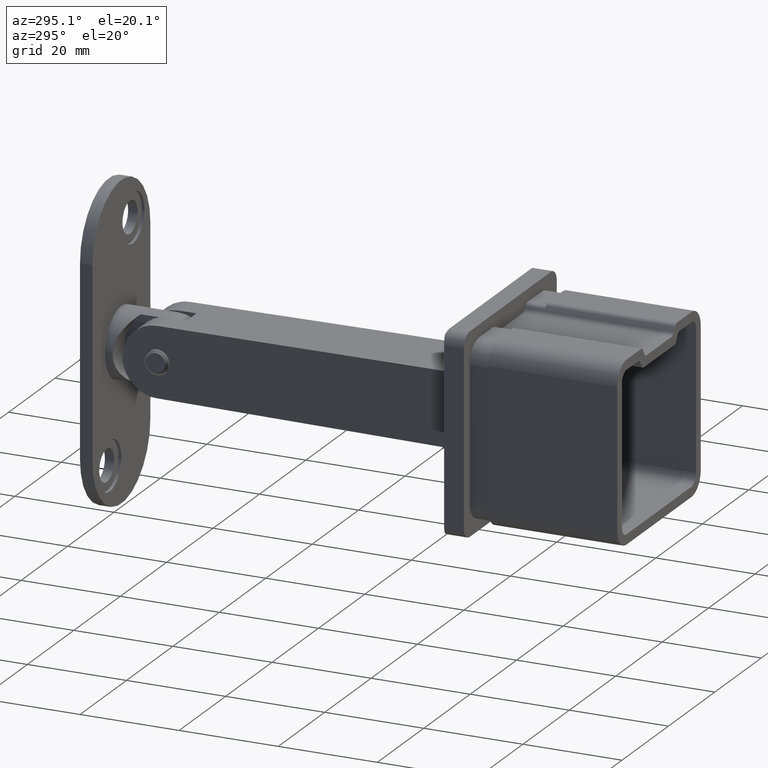
[diagram: clean part render]
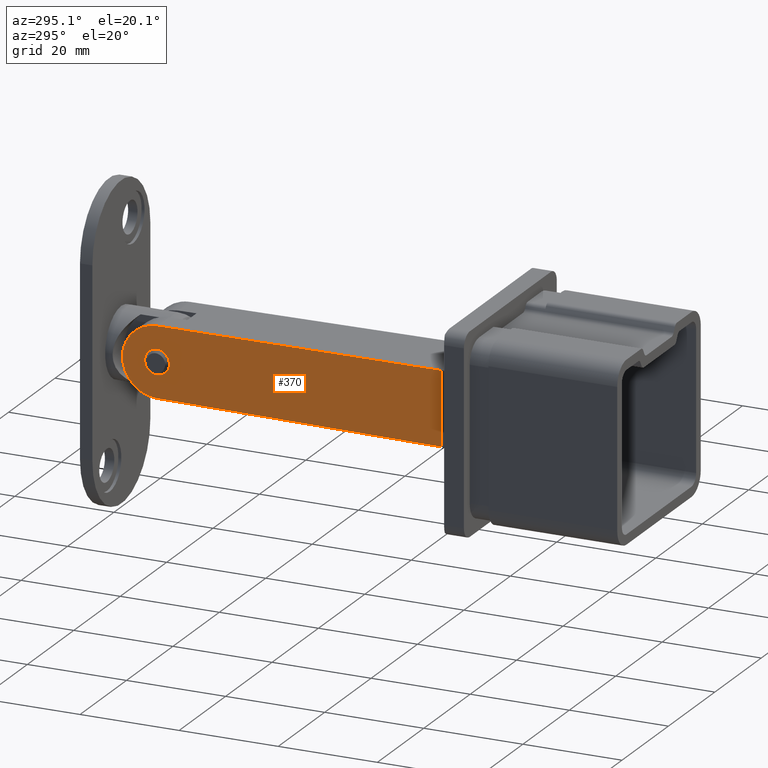
[diagram: same view with one face highlighted and labeled with its STEP entity id]
A machine part, auxiliary view. The second image highlights one B-rep face of the part: STEP entity #370.
In plain terms, the highlighted planar face has unit normal (-1, 0.0066, 0).
Its self-contained STEP definition (entity closure, byte-faithful):
#168 = CARTESIAN_POINT ( 'NONE',  ( -7.021773276781996920, 72.10518720636179069, 7.021773276781996920 ) ) ;
#370 = ADVANCED_FACE ( 'NONE', ( #2231, #6426 ), #9241, .T. ) ;
#959 = DIRECTION ( 'NONE',  ( -0.006632056678232189917, -0.9999560148568702456, 0.006632056678232189917 ) ) ;
#1050 = CARTESIAN_POINT ( 'NONE',  ( -7.002573869773049964, 75.00000000000000000, -0.0001702595050752722661 ) ) ;
#1051 = VERTEX_POINT ( 'NONE', #4248 ) ;
#1105 = EDGE_LOOP ( 'NONE', ( #8590 ) ) ;
#1106 = EDGE_LOOP ( 'NONE', ( #1746, #8183, #1493, #10487, #15344, #11169 ) ) ;
#1314 = VECTOR ( 'NONE', #2189, 1000.000000000000114 ) ;
#1474 = EDGE_CURVE ( 'NONE', #5114, #8543, #4731, .T. ) ;
#1493 = ORIENTED_EDGE ( 'NONE', *, *, #4741, .F. ) ;
#1586 = CARTESIAN_POINT ( 'NONE',  ( -7.032419437586666433, 70.50000000000000000, 0.000000000000000000 ) ) ;
#1746 = ORIENTED_EDGE ( 'NONE', *, *, #8808, .T. ) ;
#1756 = CARTESIAN_POINT ( 'NONE',  ( -7.065581179601798212, 65.50000000000001421, -4.999999999999976019 ) ) ;
#2189 = DIRECTION ( 'NONE',  ( -0.006632056678232189917, -0.9999560148568702456, -0.006632056678232189917 ) ) ;
#2231 = FACE_BOUND ( 'NONE', #1105, .T. ) ;
#3358 = CARTESIAN_POINT ( 'NONE',  ( -7.049015228753884088, 67.99775039567497004, -7.049015228753884088 ) ) ;
#3901 = CARTESIAN_POINT ( 'NONE',  ( -7.002573869773050852, 75.00000000000000000, 4.107697408256789195 ) ) ;
#4248 = CARTESIAN_POINT ( 'NONE',  ( -7.049015228753884088, 67.99775039567497004, 7.049015228753885864 ) ) ;
#4268 = CARTESIAN_POINT ( 'NONE',  ( -7.032419437586667321, 70.50000000000000000, 4.999999999999976019 ) ) ;
#4411 = DIRECTION ( 'NONE',  ( -0.9999780067029094832, 0.006632202535817147832, 0.000000000000000000 ) ) ;
#4731 = LINE ( 'NONE', #8602, #10577 ) ;
#4741 = EDGE_CURVE ( 'NONE', #1051, #8543, #12611, .T. ) ;
#4969 = LINE ( 'NONE', #11800, #1314 ) ;
#5114 = VERTEX_POINT ( 'NONE', #9483 ) ;
#5377 = CARTESIAN_POINT ( 'NONE',  ( -7.032419437586666433, 70.50000000000000000, 0.000000000000000000 ) ) ;
#5618 = CARTESIAN_POINT ( 'NONE',  ( -7.002573869773049964, 75.00000000000000000, -0.0001702595050752722661 ) ) ;
#5894 =( BOUNDED_CURVE ( )  B_SPLINE_CURVE ( 3, ( #5618, #11416, #12898, #3358 ),
 .UNSPECIFIED., .F., .T. ) 
 B_SPLINE_CURVE_WITH_KNOTS ( ( 4, 4 ),
 ( 0.000000000000000000, 1.564164075637317852 ),
 .UNSPECIFIED. ) 
 CURVE ( )  GEOMETRIC_REPRESENTATION_ITEM ( )  RATIONAL_B_SPLINE_CURVE ( ( 1.000000000000000000, 0.8062984959066029633, 0.8062984959066029633, 1.000000000000000000 ) ) 
 REPRESENTATION_ITEM ( '' )  );
#5983 = VECTOR ( 'NONE', #12298, 1000.000000000000000 ) ;
#6426 = FACE_OUTER_BOUND ( 'NONE', #1106, .T. ) ;
#6754 = EDGE_CURVE ( 'NONE', #7064, #7064, #12261, .T. ) ;
#7064 = VERTEX_POINT ( 'NONE', #9932 ) ;
#8026 = VERTEX_POINT ( 'NONE', #10682 ) ;
#8183 = ORIENTED_EDGE ( 'NONE', *, *, #1474, .T. ) ;
#8543 = VERTEX_POINT ( 'NONE', #9989 ) ;
#8590 = ORIENTED_EDGE ( 'NONE', *, *, #6754, .F. ) ;
#8602 = CARTESIAN_POINT ( 'NONE',  ( -7.430952817700096524, 10.41066875624322030, 7.500000000000000888 ) ) ;
#8808 = EDGE_CURVE ( 'NONE', #14574, #5114, #4969, .T. ) ;
#8857 = VECTOR ( 'NONE', #959, 1000.000000000000114 ) ;
#9241 = PLANE ( 'NONE',  #12802 ) ;
#9483 = CARTESIAN_POINT ( 'NONE',  ( -7.430952817700097413, 10.41066875624322030, -7.430952817700097413 ) ) ;
#9837 = EDGE_CURVE ( 'NONE', #1051, #8026, #11305, .T. ) ;
#9843 = CARTESIAN_POINT ( 'NONE',  ( -7.049015228753884088, 67.99775039567497004, 7.049015228753885864 ) ) ;
#9932 = CARTESIAN_POINT ( 'NONE',  ( -7.032419437586666433, 70.50000000000000000, 0.000000000000000000 ) ) ;
#9989 = CARTESIAN_POINT ( 'NONE',  ( -7.430952817700097413, 10.41066875624322030, 7.430952817700099189 ) ) ;
#10487 = ORIENTED_EDGE ( 'NONE', *, *, #9837, .T. ) ;
#10577 = VECTOR ( 'NONE', #14635, 1000.000000000000000 ) ;
#10661 = VERTEX_POINT ( 'NONE', #1050 ) ;
#10682 = CARTESIAN_POINT ( 'NONE',  ( -7.002573869773049964, 75.00000000000000000, 0.0001702595050770069895 ) ) ;
#11169 = ORIENTED_EDGE ( 'NONE', *, *, #15651, .T. ) ;
#11305 =( BOUNDED_CURVE ( )  B_SPLINE_CURVE ( 3, ( #9843, #168, #3901, #13560 ),
 .UNSPECIFIED., .F., .F. ) 
 B_SPLINE_CURVE_WITH_KNOTS ( ( 4, 4 ),
 ( 1.577428577952475264, 3.141592653589793116 ),
 .UNSPECIFIED. ) 
 CURVE ( )  GEOMETRIC_REPRESENTATION_ITEM ( )  RATIONAL_B_SPLINE_CURVE ( ( 1.000000000000000000, 0.8062984959066029633, 0.8062984959066029633, 1.000000000000000000 ) ) 
 REPRESENTATION_ITEM ( '' )  );
#11393 = CARTESIAN_POINT ( 'NONE',  ( -7.065581179601798212, 65.50000000000001421, 4.999999999999976019 ) ) ;
#11416 = CARTESIAN_POINT ( 'NONE',  ( -7.002573869773050852, 75.00000000000000000, -4.107697408256786531 ) ) ;
#11657 = CARTESIAN_POINT ( 'NONE',  ( -7.499999999999999112, 0.000000000000000000, 7.500000000000000888 ) ) ;
#11800 = CARTESIAN_POINT ( 'NONE',  ( -7.499340237363250061, 0.09947647449404931064, -7.499340237363250061 ) ) ;
#11842 = LINE ( 'NONE', #12242, #5983 ) ;
#12035 = CARTESIAN_POINT ( 'NONE',  ( -7.049015228753884088, 67.99775039567497004, -7.049015228753884088 ) ) ;
#12242 = CARTESIAN_POINT ( 'NONE',  ( -7.002573869773049964, 75.00000000000000000, 7.500000000000000888 ) ) ;
#12261 =( BOUNDED_CURVE ( )  B_SPLINE_CURVE ( 3, ( #1586, #12508, #1756, #12566, #11393, #4268, #5377 ),
 .UNSPECIFIED., .T., .T. ) 
 B_SPLINE_CURVE_WITH_KNOTS ( ( 4, 3, 4 ),
 ( 0.000000000000000000, 3.141592653589793116, 6.283185307179586232 ),
 .UNSPECIFIED. ) 
 CURVE ( )  GEOMETRIC_REPRESENTATION_ITEM ( )  RATIONAL_B_SPLINE_CURVE ( ( 1.000000000000000000, 0.3333333333333333703, 0.3333333333333333703, 1.000000000000000000, 0.3333333333333333703, 0.3333333333333333703, 1.000000000000000000 ) ) 
 REPRESENTATION_ITEM ( '' )  );
#12298 = DIRECTION ( 'NONE',  ( 0.000000000000000000, 0.000000000000000000, -1.000000000000000000 ) ) ;
#12508 = CARTESIAN_POINT ( 'NONE',  ( -7.032419437586667321, 70.50000000000000000, -4.999999999999976019 ) ) ;
#12566 = CARTESIAN_POINT ( 'NONE',  ( -7.065581179601796435, 65.50000000000001421, -3.061616997868368350E-16 ) ) ;
#12611 = LINE ( 'NONE', #12794, #8857 ) ;
#12794 = CARTESIAN_POINT ( 'NONE',  ( -7.499340237363250061, 0.09947647449404931064, 7.499340237363251838 ) ) ;
#12802 = AXIS2_PLACEMENT_3D ( 'NONE', #11657, #4411, #14315 ) ;
#12898 = CARTESIAN_POINT ( 'NONE',  ( -7.021773276781996920, 72.10518720636179069, -7.021773276781994255 ) ) ;
#13560 = CARTESIAN_POINT ( 'NONE',  ( -7.002573869773049964, 75.00000000000000000, 0.0001702595050770069895 ) ) ;
#14214 = EDGE_CURVE ( 'NONE', #8026, #10661, #11842, .T. ) ;
#14315 = DIRECTION ( 'NONE',  ( -0.006632202535817146964, -0.9999780067029093722, 0.000000000000000000 ) ) ;
#14574 = VERTEX_POINT ( 'NONE', #12035 ) ;
#14635 = DIRECTION ( 'NONE',  ( -0.000000000000000000, -0.000000000000000000, 1.000000000000000000 ) ) ;
#15344 = ORIENTED_EDGE ( 'NONE', *, *, #14214, .T. ) ;
#15651 = EDGE_CURVE ( 'NONE', #10661, #14574, #5894, .T. ) ;